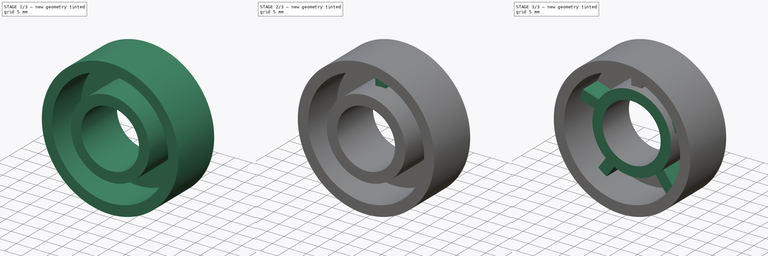
[diagram: build sequence overview — one tinted view per stage of 3, left to right]
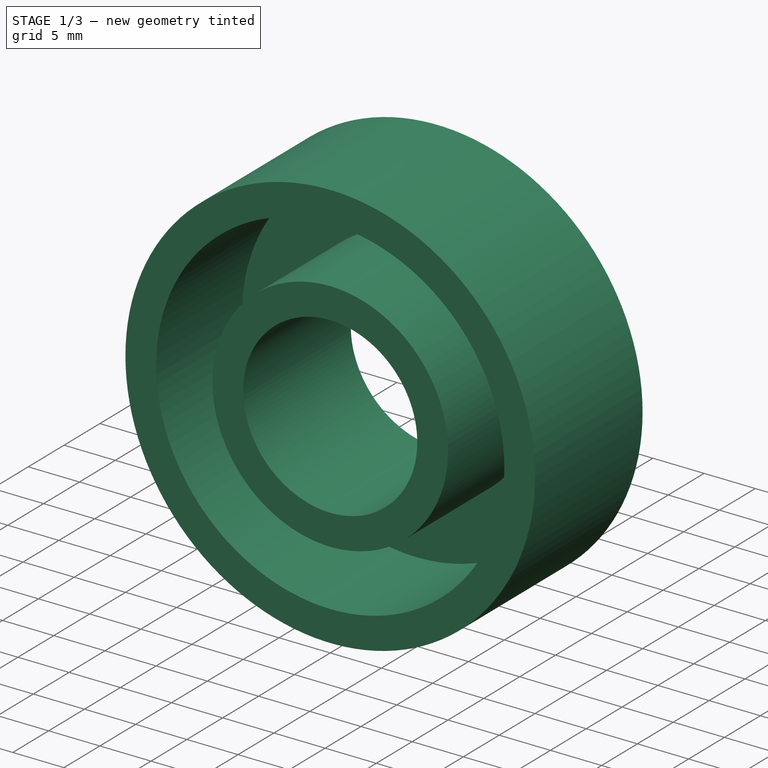
[diagram: stage 1 of 3 — iso view after this stage's code; geometry added in this stage tinted green]
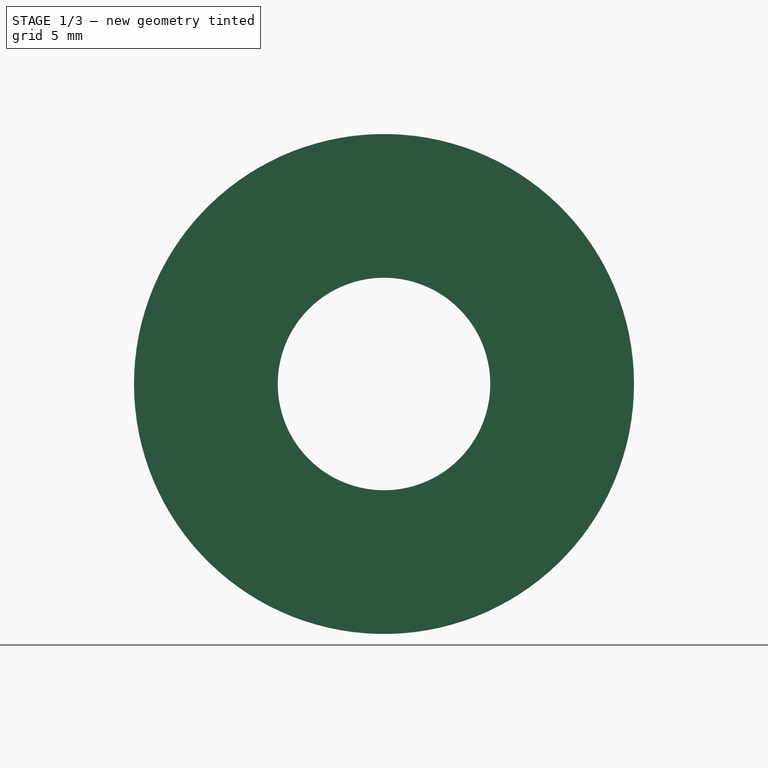
[diagram: stage 1 of 3 — front view after this stage's code; geometry added in this stage tinted green]
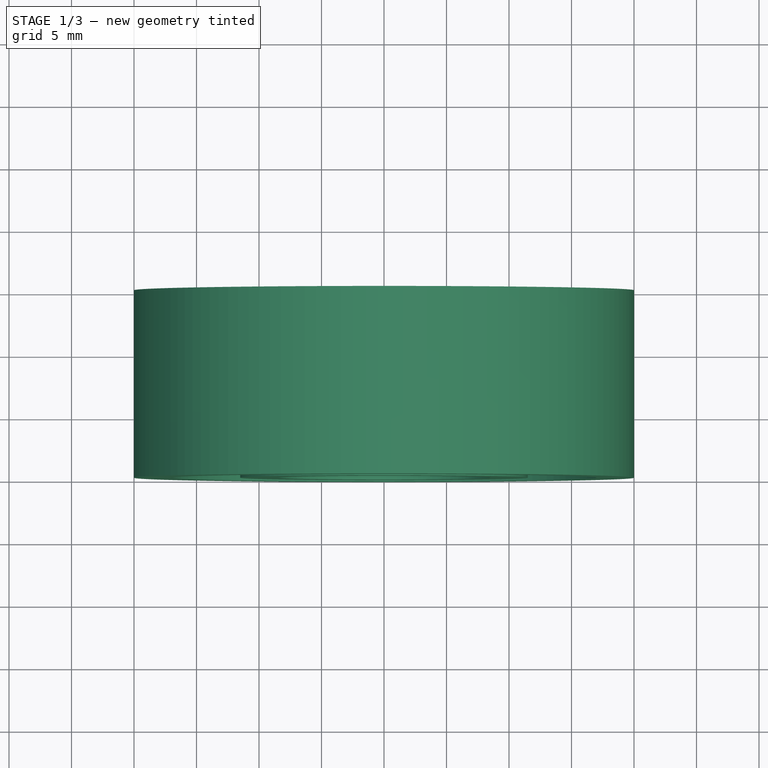
[diagram: stage 1 of 3 — top view after this stage's code; geometry added in this stage tinted green]
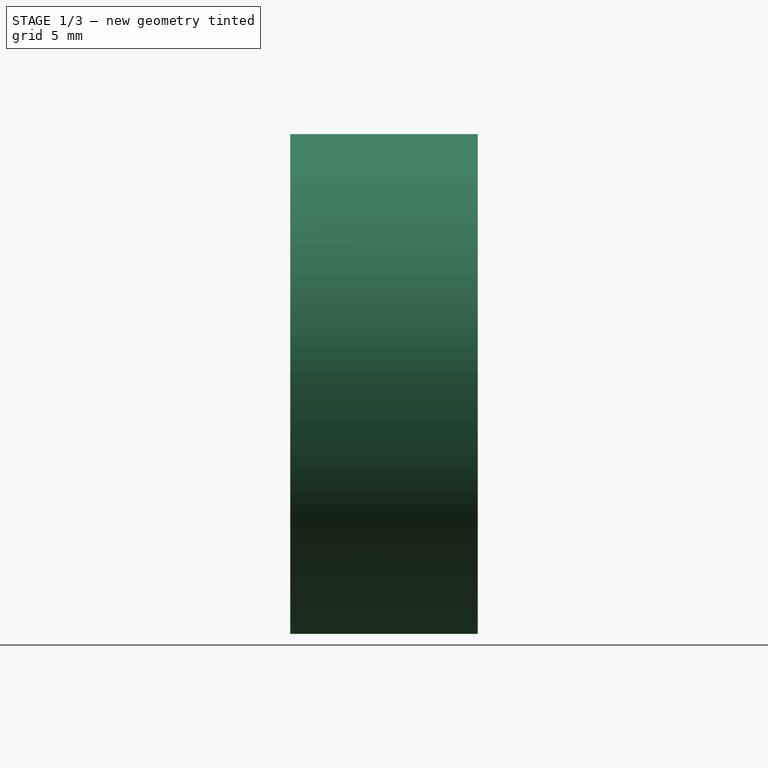
[diagram: stage 1 of 3 — right view after this stage's code; geometry added in this stage tinted green]
FCSTD DOCUMENT  (FreeCAD 0.18R16131 (Git))
Label: support poignee porte seat
License: All rights reserved
LicenseURL: http://en.wikipedia.org/wiki/All_rights_reserved
objects: Sketcher::SketchObject×4, PartDesign::Pad×2, PartDesign::Pocket×2, App::MeasureDistance×2, PartDesign::PolarPattern×1, PartDesign::Body×1
note: 14 computed .brp shape members not serialized (recipe doc carries the construction recipe); baked Part::Feature solids carry a one-line shape summary decoded from their .brp

FEATURE [Sketcher::SketchObject] Sketch
  MapMode = 5
  Placement = pos=(0,0,0) rot=(1,0,0;1.5708rad)
  Support = -> [XZ_Plane]
  sketch-geometry (2):
    g0: Circle CenterX=0 CenterY=0 CenterZ=0 NormalX=0 NormalY=0 NormalZ=1 AngleXU=0 Radius=20
    g1: Circle CenterX=0 CenterY=0 CenterZ=0 NormalX=0 NormalY=0 NormalZ=1 AngleXU=0 Radius=8.5
  constraints (4):
    c: Coincident(g0,g-1)
    c: Coincident(g1,g0)
    c: Diameter(g0) = 40
    c: Diameter(g1) = 17
FEATURE [PartDesign::Pad] Pad
  Length = 15
  Length2 = 100
  Placement = pos=(0,0,0) rot=(1,0,0;1.5708rad)
  Profile = -> Sketch
  Type = 0
FEATURE [Sketcher::SketchObject] Sketch001
  AttachmentOffset = pos=(0,0,3) rot=(0,0,1;0rad)
  ExternalGeometry = -> [Sketch]
  MapMode = 5
  Placement = pos=(0,-3,-7e-16) rot=(1,0,0;1.5708rad)
  Support = -> [XZ_Plane]
  sketch-geometry (6):
    g0: Circle CenterX=0 CenterY=0 CenterZ=0 NormalX=0 NormalY=0 NormalZ=1 AngleXU=0 Radius=17
    g1: GeomPoint X=0 Y=20 Z=0
    g2: GeomPoint X=0 Y=17 Z=0
    g3: GeomPoint X=0 Y=8.5 Z=0
    g4: Circle CenterX=0 CenterY=0 CenterZ=0 NormalX=0 NormalY=0 NormalZ=1 AngleXU=0 Radius=11.5
    g5: GeomPoint X=0 Y=11.5 Z=0
  constraints (12):
    c: Coincident(g0,g-1)
    c: PointOnObject(g1,g-3)
    c: PointOnObject(g2,g0)
    c: PointOnObject(g3,g-4)
    c: PointOnObject(g1,g-2)
    c: PointOnObject(g2,g-2)
    c: DistanceY(g2,g1) = 3
    c: Coincident(g4,g0)
    c: PointOnObject(g3,g-2)
    c: PointOnObject(g5,g4)
    c: PointOnObject(g5,g-2)
    c: DistanceY(g3,g5) = 3
FEATURE [PartDesign::Pocket] Pocket
  BaseFeature = -> Pad
  Length = 5
  Length2 = 100
  Placement = pos=(0,0,0) rot=(1,0,0;1.5708rad)
  Profile = -> Sketch001
  Reversed = true
  Type = 1
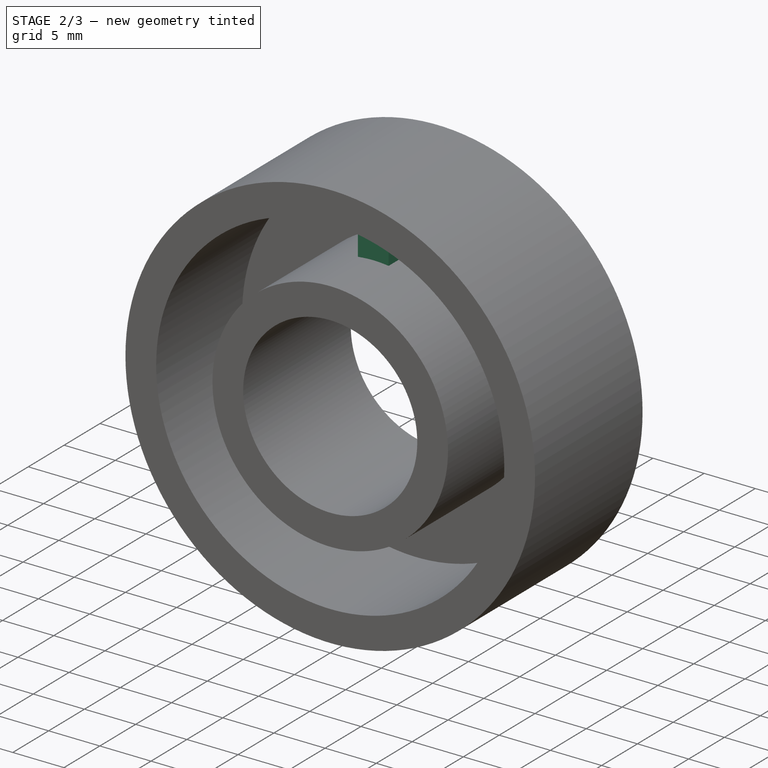
[diagram: stage 2 of 3 — iso view after this stage's code; geometry added in this stage tinted green]
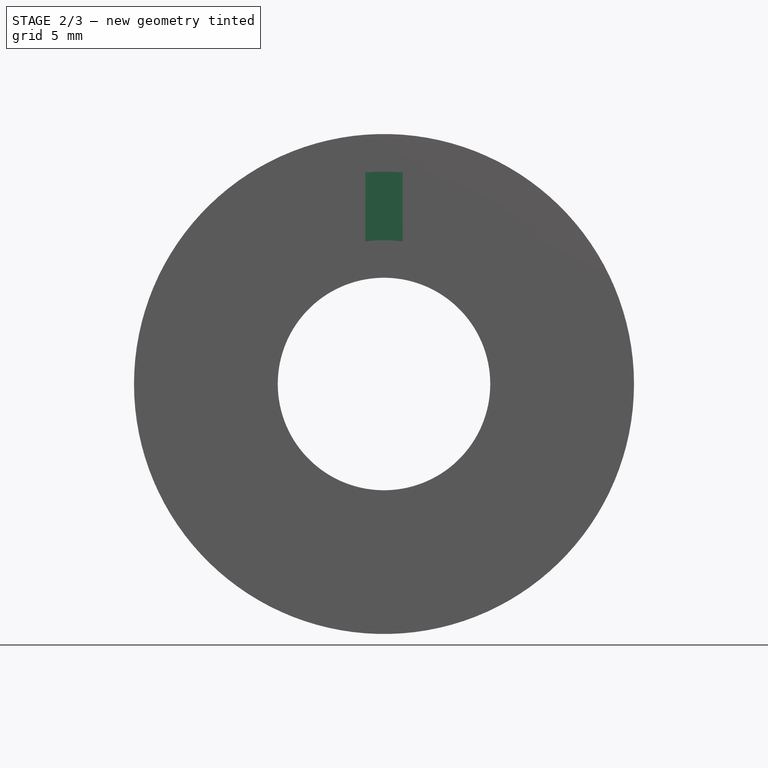
[diagram: stage 2 of 3 — front view after this stage's code; geometry added in this stage tinted green]
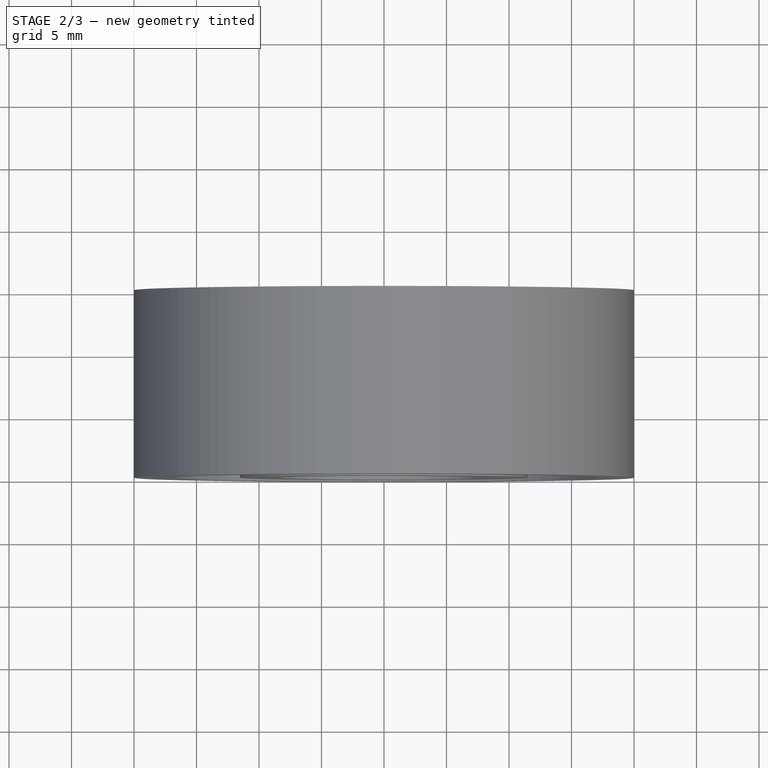
[diagram: stage 2 of 3 — top view after this stage's code; geometry added in this stage tinted green]
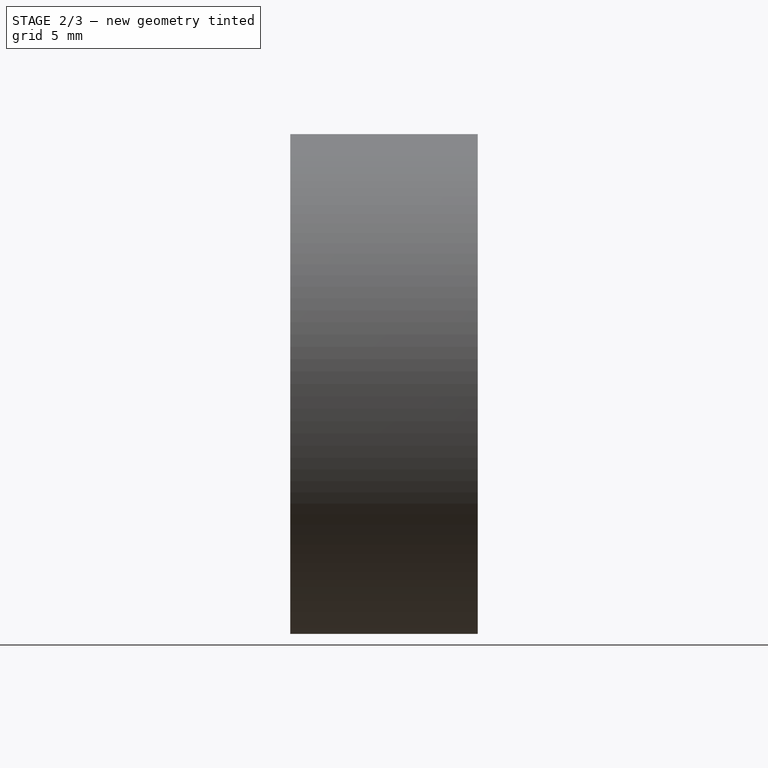
[diagram: stage 2 of 3 — right view after this stage's code; geometry added in this stage tinted green]
FEATURE [Sketcher::SketchObject] Sketch002
  AttachmentOffset = pos=(0,0,3) rot=(0,0,1;0rad)
  MapMode = 5
  Placement = pos=(0,-3,-7e-16) rot=(1,0,0;1.5708rad)
  Support = -> [XZ_Plane]
  sketch-geometry (4):
    g0: LineSegment StartX=-1.5 StartY=18.1713 StartZ=0 EndX=1.5 EndY=18.1713 EndZ=0
    g1: LineSegment StartX=1.5 StartY=18.1713 StartZ=0 EndX=1.5 EndY=10.0212 EndZ=0
    g2: LineSegment StartX=1.5 StartY=10.0212 StartZ=0 EndX=-1.5 EndY=10.0212 EndZ=0
    g3: LineSegment StartX=-1.5 StartY=10.0212 StartZ=0 EndX=-1.5 EndY=18.1713 EndZ=0
  constraints (9):
    c: Coincident(g0,g1)
    c: Coincident(g1,g2)
    c: Coincident(g2,g3)
    c: Coincident(g3,g0)
    c: Horizontal(g2)
    c: Vertical(g1)
    c: Vertical(g3)
    c: DistanceX(g0,g0) = 3
    c: Symmetric(g0,g0,g-2)
FEATURE [PartDesign::Pad] Pad001
  BaseFeature = -> Pocket
  Length = 6
  Length2 = 100
  Placement = pos=(0,0,0) rot=(1,0,0;1.5708rad)
  Profile = -> Sketch002
  Type = 0
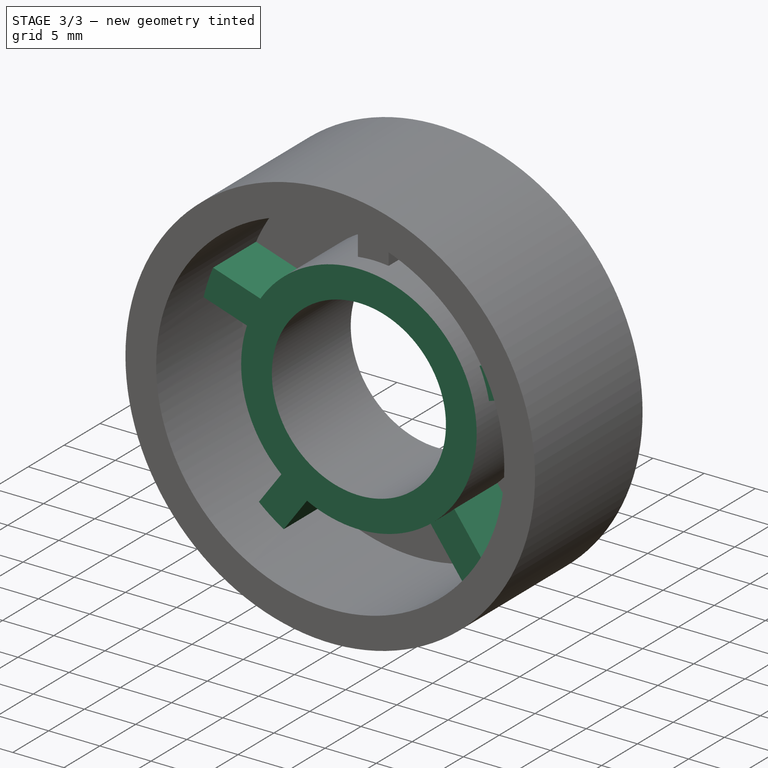
[diagram: stage 3 of 3 — iso view after this stage's code; geometry added in this stage tinted green]
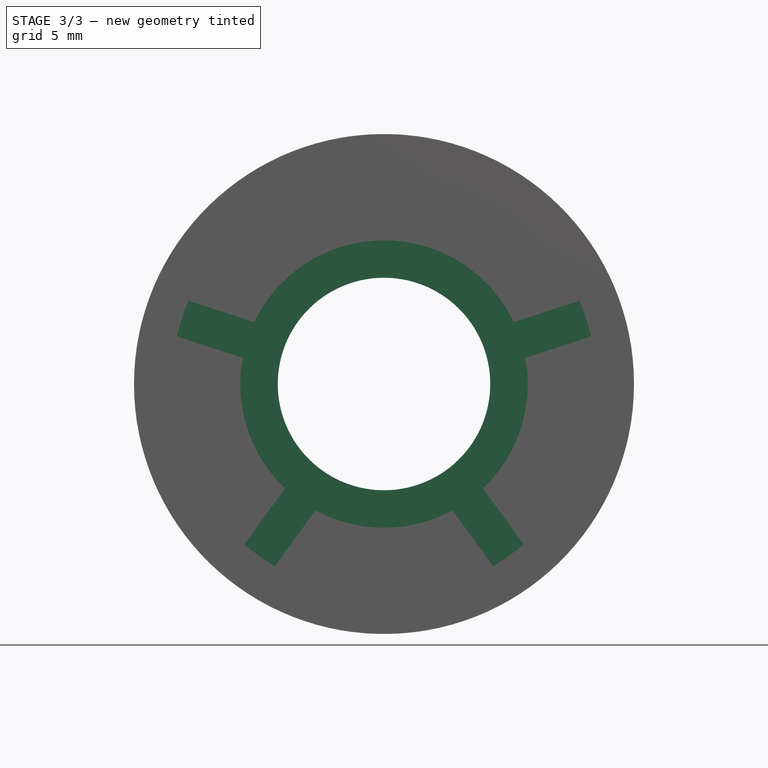
[diagram: stage 3 of 3 — front view after this stage's code; geometry added in this stage tinted green]
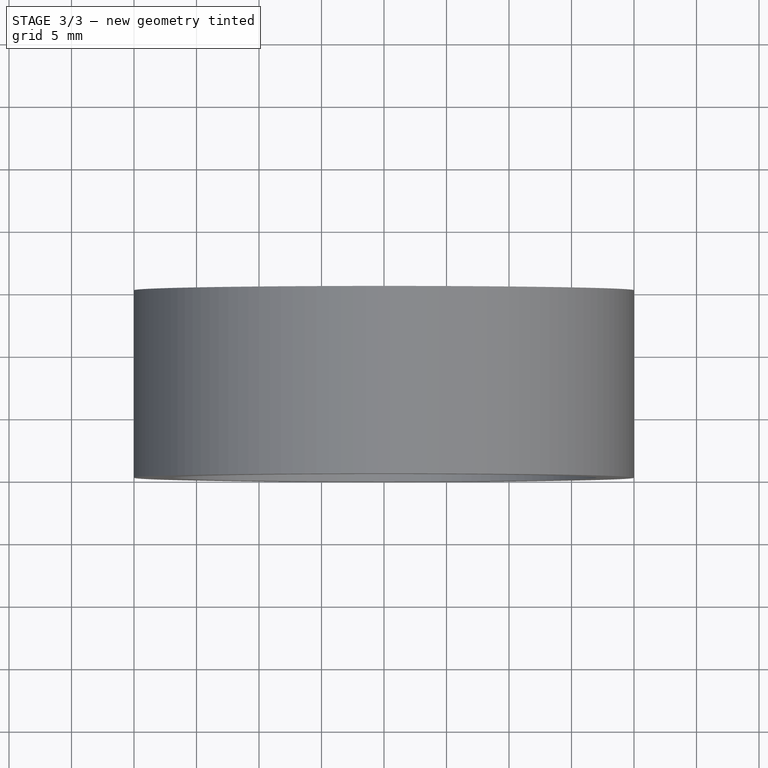
[diagram: stage 3 of 3 — top view after this stage's code; geometry added in this stage tinted green]
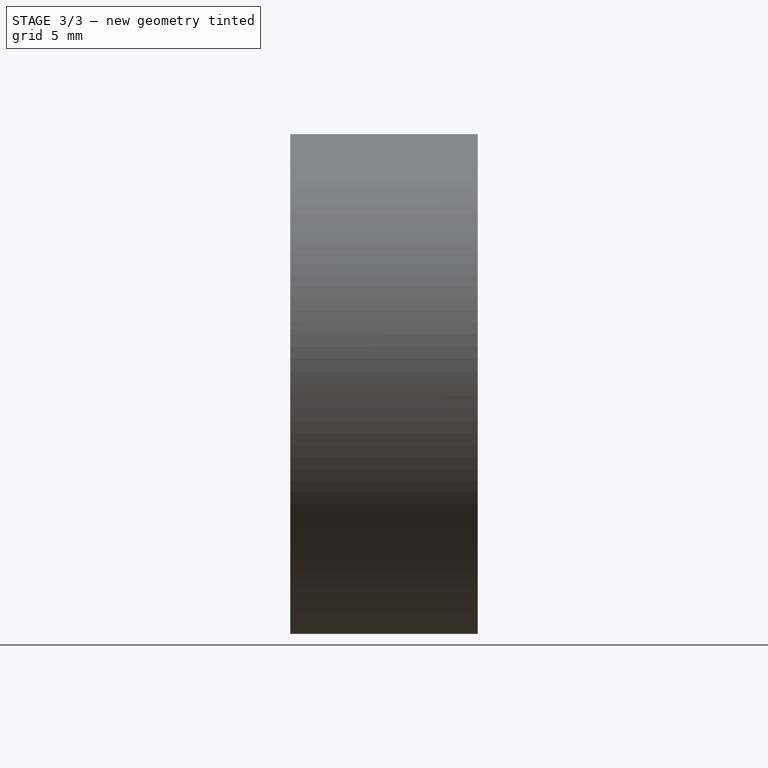
[diagram: stage 3 of 3 — right view after this stage's code; geometry added in this stage tinted green]
FEATURE [PartDesign::PolarPattern] PolarPattern
  Angle = 360
  Axis = -> Sketch002 [N_Axis]
  BaseFeature = -> Pad001
  Occurrences = 5
  Originals = -> [Pad001]
  Placement = pos=(0,0,0) rot=(1,0,0;1.5708rad)
FEATURE [App::MeasureDistance] Distance  label="Distance: 1,69 cm"
  Distance = 16.9071
  P1 = (-8.41419,-15,0.706731)
  P2 = (8.48336,-15,0.137039)
FEATURE [Sketcher::SketchObject] Sketch003
  AttachmentOffset = pos=(0,0,11) rot=(0,0,1;0rad)
  ExternalGeometry = -> [Sketch001]
  MapMode = 5
  Placement = pos=(0,-11,-2.4e-15) rot=(1,0,0;1.5708rad)
  Support = -> [XZ_Plane]
  sketch-geometry (1):
    g0: Circle CenterX=0 CenterY=0 CenterZ=0 NormalX=0 NormalY=0 NormalZ=1 AngleXU=0 Radius=11.5
  constraints (2):
    c: Coincident(g0,g-1)
    c: Equal(g0,g-3)
FEATURE [PartDesign::Pocket] Pocket001
  BaseFeature = -> PolarPattern
  Length = 5
  Length2 = 100
  Placement = pos=(0,0,0) rot=(1,0,0;1.5708rad)
  Profile = -> Sketch003
  Reversed = true
  Type = 1
FEATURE [PartDesign::Body] Body
  Group = -> [Sketch,Pad,Sketch001,Pocket,Sketch002,Pad001,PolarPattern,Sketch003,Pocket001]
  Origin = -> Origin
  Tip = -> Pocket001
FEATURE [App::MeasureDistance] Distance001  label="Distance: 0,69 cm"
  Distance = 6.88217
  P1 = (-1.4269,-11,11.3468)
  P2 = (-0.751855,-15,16.9064)
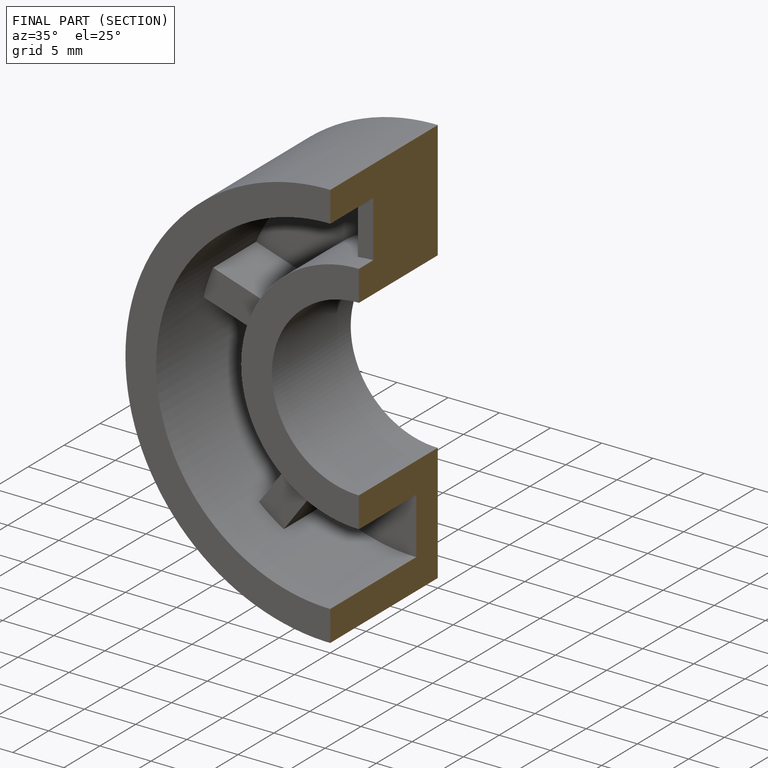
[diagram: finished part — half-section view (interior)]
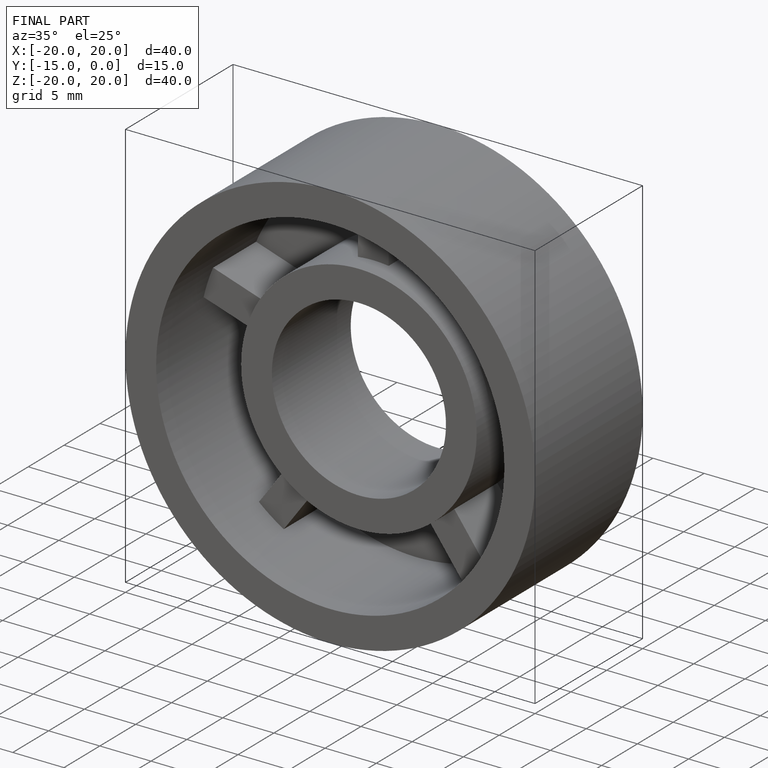
[diagram: finished part — iso view with bounding-box wireframe]
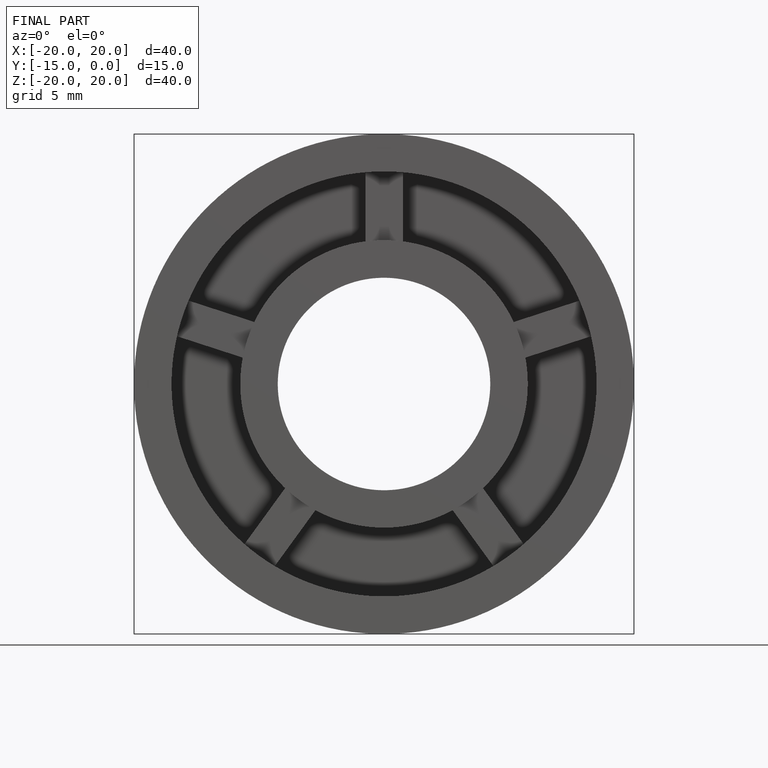
[diagram: finished part — front view with bounding-box wireframe]
